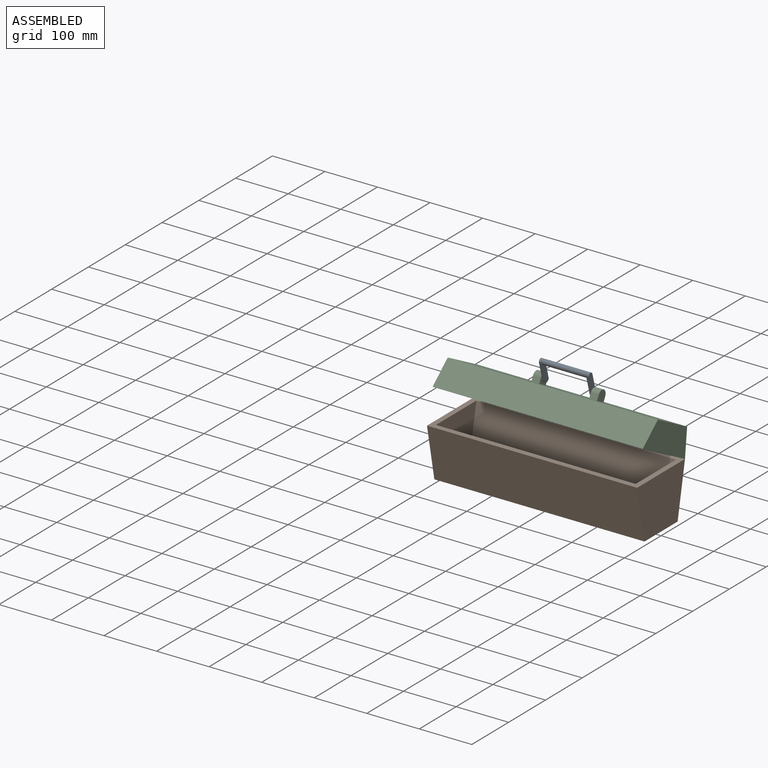
[diagram: assembled view]
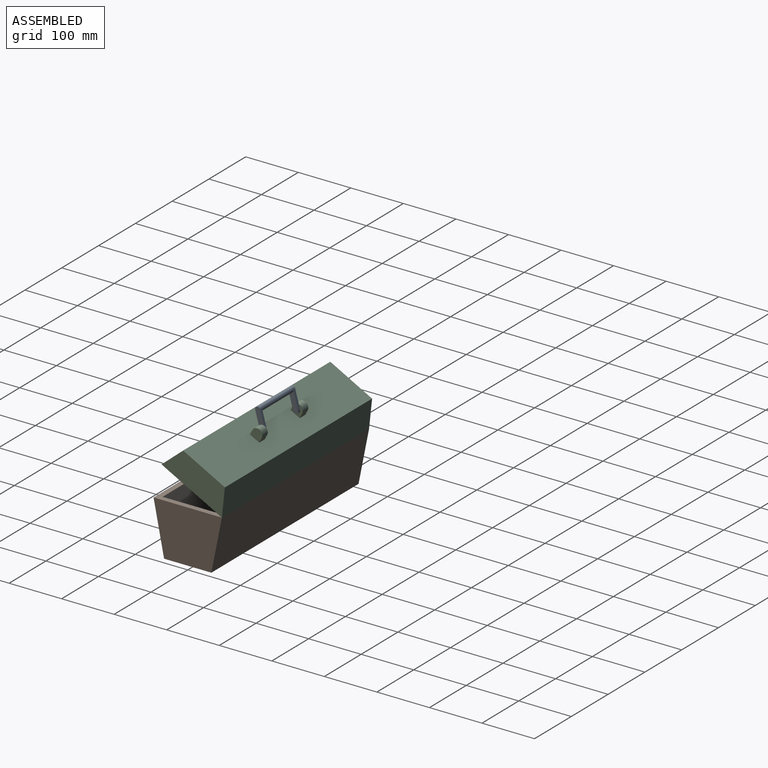
[diagram: assembled view, second angle]
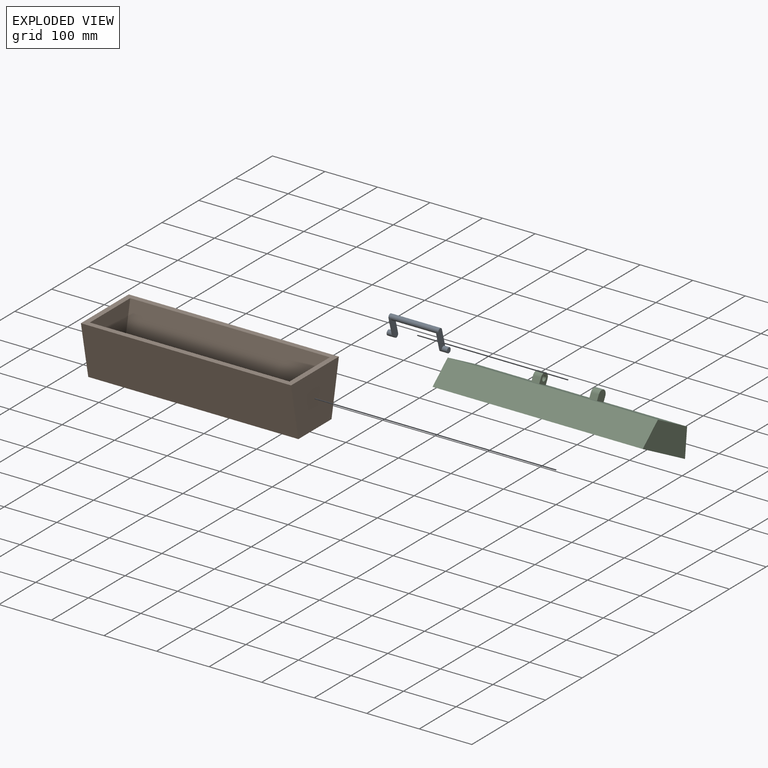
[diagram: exploded view]
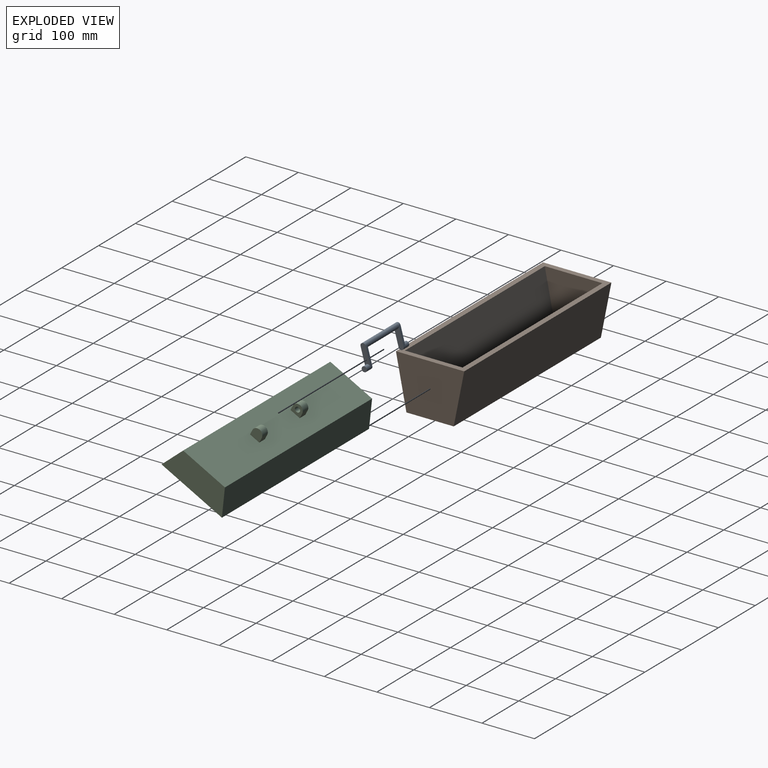
[diagram: exploded view, second angle]
ASSEMBLY  parts=3 mates=2
PART A: 13 faces, bbox 115x10x45 mm
  f0: cylinder r=5mm len=15mm, axis (-1,0,0), area 392.7mm2, adj f1,f2,f3,f4,f5
  f1: plane 10x10mm, normal (1,0,0), area 78.5mm2, adj f0
  f2: plane 40x10mm, normal (1,0,0), area 350mm2, adj f0,f3,f4,f6
  f3: plane 35x5mm, normal (0,1,0), area 175mm2, adj f0,f2,f5,f6
  f4: plane 35x5mm, normal (0,-1,0), area 175mm2, adj f0,f2,f5,f6
  f5: plane 40x10mm, normal (-1,0,0), area 350mm2, adj f0,f3,f4,f6
  f6: cylinder r=5mm len=95mm, axis (1,0,0), area 2827.4mm2, adj f2,f3,f4,f5,f9,f10,f11,f12
  f7: cylinder r=5mm len=15mm, axis (1,0,0), area 392.7mm2, adj f8,f9,f10,f11,f12
  f8: plane 10x10mm, normal (-1,0,0), area 78.5mm2, adj f7
  f9: plane 40x10mm, normal (-1,0,0), area 350mm2, adj f6,f7,f10,f11
  f10: plane 35x5mm, normal (0,1,0), area 175mm2, adj f6,f7,f9,f12
  f11: plane 35x5mm, normal (0,-1,0), area 175mm2, adj f6,f7,f9,f12
  f12: plane 40x10mm, normal (1,0,0), area 350mm2, adj f6,f7,f10,f11
PART B: 11 faces, bbox 400x130x100 mm
  f0: plane 400x130mm, normal (0,0,1), area 10350.5mm2, adj f2,f3,f4,f5,f7,f8,f9,f10
  f1: plane 400x90mm, normal (0,0,-1), area 36000mm2, adj f2,f3,f4,f5
  f2: plane 400x100mm, normal (0,0.98,-0.2), area 40792.2mm2, adj f0,f1,f4,f5
  f3: plane 400x100mm, normal (0,-0.98,-0.2), area 40792.2mm2, adj f0,f1,f4,f5
  f4: plane 130x100mm, normal (1,0,0), area 11000mm2, adj f0,f1,f2,f3
  f5: plane 130x100mm, normal (-1,0,0), area 11000mm2, adj f0,f1,f2,f3
  f6: plane 380x73.6mm, normal (0,0,1), area 27969.5mm2, adj f7,f8,f9,f10
  f7: plane 380x90mm, normal (0,-0.98,0.2), area 34877.3mm2, adj f0,f6,f9,f10
  f8: plane 380x90mm, normal (0,0.98,0.2), area 34877.3mm2, adj f0,f6,f9,f10
  f9: plane 109.6x90mm, normal (-1,0,0), area 8244.4mm2, adj f0,f6,f7,f8
  f10: plane 109.6x90mm, normal (1,0,0), area 8244.4mm2, adj f0,f6,f7,f8
PART C: 25 faces, bbox 400x130x70 mm
  f0: plane 400x90mm, normal (0,0,1), area 35400mm2, adj f2,f3,f4,f5,f11,f12,f13,f14
  f1: plane 400x130mm, normal (0,0,-1), area 10785.5mm2, adj f2,f3,f4,f5,f7,f8,f9,f10
  f2: plane 400x50mm, normal (0,-0.93,0.37), area 21540.7mm2, adj f0,f1,f4,f5
  f3: plane 400x50mm, normal (0,0.93,0.37), area 21540.7mm2, adj f0,f1,f4,f5
  f4: plane 130x50mm, normal (1,0,0), area 5500mm2, adj f0,f1,f2,f3
  f5: plane 130x50mm, normal (-1,0,0), area 5500mm2, adj f0,f1,f2,f3
  f6: plane 380x76.46mm, normal (0,0,-1), area 29054.5mm2, adj f7,f8,f9,f10
  f7: plane 380x40mm, normal (0,0.93,-0.37), area 16370.9mm2, adj f1,f6,f9,f10
  f8: plane 380x40mm, normal (0,-0.93,-0.37), area 16370.9mm2, adj f1,f6,f9,f10
  f9: plane 108.46x40mm, normal (-1,0,0), area 3698.4mm2, adj f1,f6,f7,f8
  f10: plane 108.46x40mm, normal (1,0,0), area 3698.4mm2, adj f1,f6,f7,f8
  f11: plane 15x10mm, normal (0,1,0), area 150mm2, adj f0,f12,f14,f24
  f12: plane 20x20mm, normal (-1,0,0), area 357.1mm2, adj f0,f11,f13,f24
  f13: plane 15x10mm, normal (0,-1,0), area 150mm2, adj f0,f12,f14,f24
  f14: plane 20x20mm, normal (1,0,0), area 278.5mm2, adj f0,f11,f13,f21,f24
  f15: plane 15x10mm, normal (0,1,0), area 150mm2, adj f0,f16,f18,f23
  f16: plane 20x20mm, normal (-1,0,0), area 278.5mm2, adj f0,f15,f17,f20,f23
  f17: plane 15x10mm, normal (0,-1,0), area 150mm2, adj f0,f16,f18,f23
  f18: plane 20x20mm, normal (1,0,0), area 357.1mm2, adj f0,f15,f17,f23
  f19: plane 10x10mm, normal (-1,0,0), area 78.5mm2, adj f20
  f20: cylinder r=5mm len=10mm, axis (1,0,0), area 314.2mm2, adj f16,f19
  f21: cylinder r=5mm len=10mm, axis (1,0,0), area 314.2mm2, adj f14,f22
  f22: plane 10x10mm, normal (1,0,0), area 78.5mm2, adj f21
  f23: cylinder r=10mm len=20mm, axis (1,0,0), area 471.2mm2, adj f15,f16,f17,f18
  f24: cylinder r=10mm len=20mm, axis (1,0,0), area 471.2mm2, adj f11,f12,f13,f14
PLACE A rot(axis=(1,0,0),15.4deg) t=(0,35.71,108.47)mm
PLACE B at identity fixed
PLACE C rot(axis=(-1,0,0),28deg) t=(0,-4.14,33.39)mm
MATE revolute A.f0 <-> C.f20  axis (1,0,0) through (57.5,35.71,108.47)mm
MATE revolute C.f5 <-> B.f5  axis (-1,0,0) through (-200,65,25)mm
